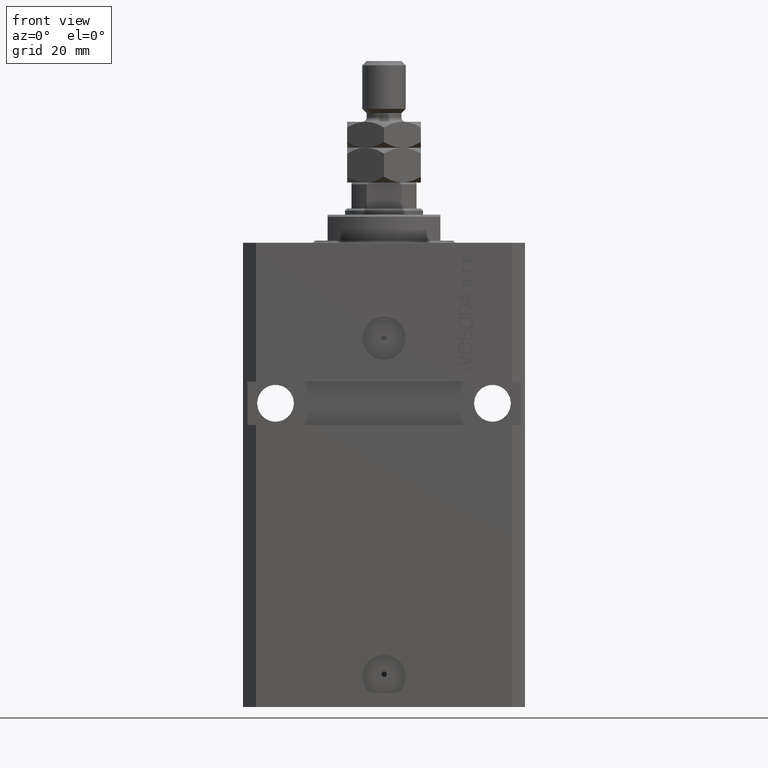
[diagram: clean part render]
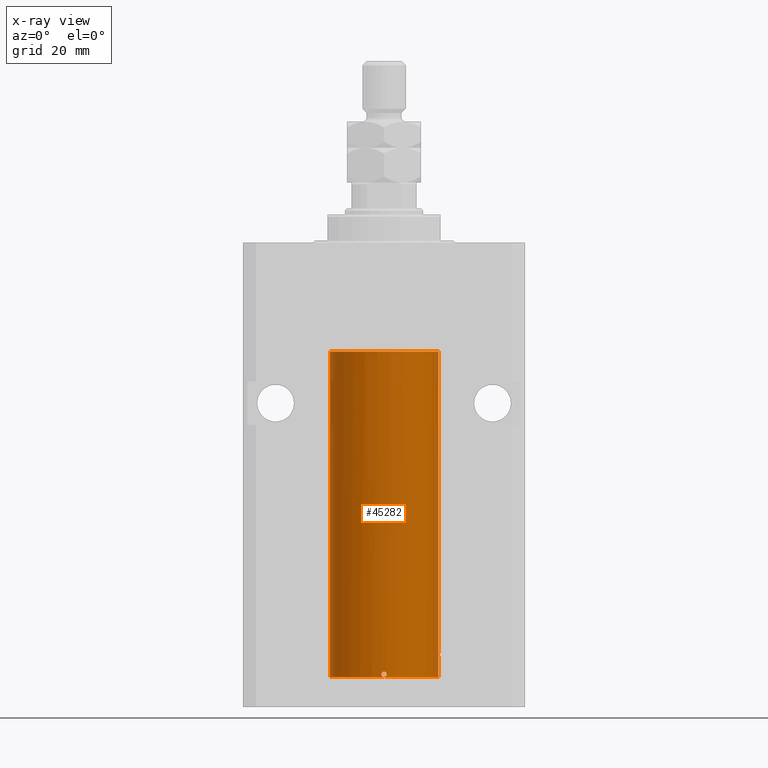
[diagram: x-ray — body ghosted, one internal face saturated and labeled with its STEP entity id]
A machine part, front view, then the same camera in x-ray: the body is ghosted and one INTERNAL B-rep face — a face not visible from any outside direction — is saturated and labeled: STEP entity #45282.
In plain terms, the highlighted cylindrical surface (partial cylindrical patch) has radius 12.5 mm, axis along (0, 0, 1).
Its self-contained STEP definition (entity closure, byte-faithful):
#1190 = B_SPLINE_CURVE_WITH_KNOTS ( 'NONE', 3,
 ( #22603, #26122, #8920, #23298, #12010, #27282 ),
 .UNSPECIFIED., .F., .F.,
 ( 4, 2, 4 ),
 ( 0.002931796015602113319, 0.003420015203430351765, 0.003908234391258589777 ),
 .UNSPECIFIED. ) ;
#1729 = CARTESIAN_POINT ( 'NONE',  ( 0.000000000000000000, 0.000000000000000000, -100.0999999999999943 ) ) ;
#1814 = ORIENTED_EDGE ( 'NONE', *, *, #10299, .F. ) ;
#1823 = DIRECTION ( 'NONE',  ( -0.000000000000000000, -0.000000000000000000, 1.000000000000000000 ) ) ;
#1853 = CARTESIAN_POINT ( 'NONE',  ( 0.5460961315382512060, -12.48810487413754444, -99.16017824283936477 ) ) ;
#2033 = VERTEX_POINT ( 'NONE', #30548 ) ;
#2233 = VECTOR ( 'NONE', #38986, 1000.000000000000000 ) ;
#2475 = CARTESIAN_POINT ( 'NONE',  ( -12.48437204107163190, -0.6248637920779657184, -95.16542285240650756 ) ) ;
#2976 = VERTEX_POINT ( 'NONE', #34123 ) ;
#3479 = CARTESIAN_POINT ( 'NONE',  ( 12.50000000000000000, 0.000000000000000000, -25.10000000000000142 ) ) ;
#4258 = CARTESIAN_POINT ( 'NONE',  ( 12.50000000000000178, -0.1650848372273117926, -95.62500000000005684 ) ) ;
#4292 = VERTEX_POINT ( 'NONE', #6516 ) ;
#4312 = CARTESIAN_POINT ( 'NONE',  ( -12.50000000000000000, 1.530808498934191521E-15, -100.0999999999999943 ) ) ;
#5063 = ORIENTED_EDGE ( 'NONE', *, *, #25977, .T. ) ;
#5368 = FACE_OUTER_BOUND ( 'NONE', #27430, .T. ) ;
#5456 = CARTESIAN_POINT ( 'NONE',  ( 0.5573988467447078543, -12.48809900631781034, -99.80140147935479433 ) ) ;
#5545 = CARTESIAN_POINT ( 'NONE',  ( 12.48436522214885436, -0.6250000000001719735, -95.00000000000000000 ) ) ;
#6147 = CARTESIAN_POINT ( 'NONE',  ( 0.6250000000080510043, -12.48436522214846001, -99.47499999999922693 ) ) ;
#6247 = CARTESIAN_POINT ( 'NONE',  ( -12.48809300548635903, -0.5575284115737645374, -94.67380822970859811 ) ) ;
#6382 = CARTESIAN_POINT ( 'NONE',  ( 0.3844519291904485159, -12.49421963472024188, -99.97447303647052763 ) ) ;
#6477 = CARTESIAN_POINT ( 'NONE',  ( -12.49625500642807729, -0.3269795983093172764, -94.44293326880233508 ) ) ;
#6516 = CARTESIAN_POINT ( 'NONE',  ( -12.50000000000017941, 3.883381774819353300E-13, -95.62500000000359535 ) ) ;
#6986 = CARTESIAN_POINT ( 'NONE',  ( 12.50000000000000000, 0.000000000000000000, -100.0999999999999943 ) ) ;
#7177 = DIRECTION ( 'NONE',  ( 0.000000000000000000, 0.000000000000000000, 1.000000000000000000 ) ) ;
#7604 = VECTOR ( 'NONE', #37969, 1000.000000000000000 ) ;
#7771 = CARTESIAN_POINT ( 'NONE',  ( 12.50000000000000000, 0.000000000000000000, -100.0999999999999943 ) ) ;
#7857 = LINE ( 'NONE', #4312, #9956 ) ;
#8505 = CARTESIAN_POINT ( 'NONE',  ( 12.50000000000000000, 0.000000000000000000, -100.0999999999999943 ) ) ;
#8839 = CARTESIAN_POINT ( 'NONE',  ( 12.50000000000000000, -1.836039810331332019E-15, -95.62500000000000000 ) ) ;
#8920 = CARTESIAN_POINT ( 'NONE',  ( -0.5573321180046024725, -12.48810161786719242, -99.80148238604532196 ) ) ;
#9268 = CARTESIAN_POINT ( 'NONE',  ( -0.6250000000000023315, -12.48436522214886324, -99.47499999999999432 ) ) ;
#9534 = CARTESIAN_POINT ( 'NONE',  ( -12.48435842450558297, -0.6251357828645061065, -94.83560799371400662 ) ) ;
#9738 = ORIENTED_EDGE ( 'NONE', *, *, #27364, .F. ) ;
#9956 = VECTOR ( 'NONE', #21514, 1000.000000000000000 ) ;
#10200 = LINE ( 'NONE', #17037, #7604 ) ;
#10299 = EDGE_CURVE ( 'NONE', #2033, #36725, #25903, .T. ) ;
#10446 = ORIENTED_EDGE ( 'NONE', *, *, #27730, .F. ) ;
#10780 = B_SPLINE_CURVE_WITH_KNOTS ( 'NONE', 3,
 ( #42225, #34734, #38708, #45273, #2475, #9534, #6247, #6477, #16846, #31430 ),
 .UNSPECIFIED., .F., .F.,
 ( 4, 2, 2, 2, 4 ),
 ( 0.001954339881912780900, 0.002442813509249233336, 0.002931287136585685772, 0.003419760763922138208, 0.003908234391258590644 ),
 .UNSPECIFIED. ) ;
#10840 = DIRECTION ( 'NONE',  ( -0.000000000000000000, -0.000000000000000000, 1.000000000000000000 ) ) ;
#11340 = CARTESIAN_POINT ( 'NONE',  ( 12.48810161786718709, -0.5573321180047424717, -95.32648238604538449 ) ) ;
#11503 = VERTEX_POINT ( 'NONE', #8839 ) ;
#11590 = EDGE_CURVE ( 'NONE', #4292, #44579, #10780, .T. ) ;
#12010 = CARTESIAN_POINT ( 'NONE',  ( -0.1650848372272839537, -12.50000000000000178, -100.1000000000000085 ) ) ;
#12015 = CARTESIAN_POINT ( 'NONE',  ( 0.6087772866342631151, -12.48520622767670574, -99.31152541805842304 ) ) ;
#12685 = CARTESIAN_POINT ( 'NONE',  ( 0.000000000000000000, 0.000000000000000000, -25.10000000000000142 ) ) ;
#13384 = DIRECTION ( 'NONE',  ( 1.000000000000000000, 0.000000000000000000, 0.000000000000000000 ) ) ;
#13687 = CARTESIAN_POINT ( 'NONE',  ( 0.3151108292487660445, -12.49625698805480845, -100.0209369568817834 ) ) ;
#13706 = AXIS2_PLACEMENT_3D ( 'NONE', #12685, #41361, #13384 ) ;
#14844 = LINE ( 'NONE', #7771, #33078 ) ;
#15080 = CARTESIAN_POINT ( 'NONE',  ( 12.50000000000000355, -0.1632239044005776296, -94.37499999999975842 ) ) ;
#15320 = CARTESIAN_POINT ( 'NONE',  ( 12.49626862995824261, -0.3264790874448512681, -94.44266345233397431 ) ) ;
#15555 = CARTESIAN_POINT ( 'NONE',  ( 12.48436522214885436, -0.6250000000001719735, -95.00000000000000000 ) ) ;
#15748 = VERTEX_POINT ( 'NONE', #31685 ) ;
#15784 = CARTESIAN_POINT ( 'NONE',  ( -0.6250000000000024425, -12.48436522214886324, -99.31002761350272579 ) ) ;
#16013 = CARTESIAN_POINT ( 'NONE',  ( 0.6250000000080510043, -12.48436522214846001, -99.47499999999922693 ) ) ;
#16846 = CARTESIAN_POINT ( 'NONE',  ( -12.50000000000000178, -0.1651708725693010194, -94.37500000000000000 ) ) ;
#17037 = CARTESIAN_POINT ( 'NONE',  ( -12.50000000000000000, 1.530808498934191521E-15, -100.0999999999999943 ) ) ;
#17078 = CARTESIAN_POINT ( 'NONE',  ( 12.48436522214885080, -0.6250000000001718625, -95.16484350486187793 ) ) ;
#19716 = CIRCLE ( 'NONE', #13706, 12.50000000000000000 ) ;
#19738 = CYLINDRICAL_SURFACE ( 'NONE', #44415, 12.50000000000000000 ) ;
#20746 = CARTESIAN_POINT ( 'NONE',  ( 0.08262306818364179017, -12.50000000000000000, -100.1000000000000085 ) ) ;
#21514 = DIRECTION ( 'NONE',  ( -0.000000000000000000, -0.000000000000000000, 1.000000000000000000 ) ) ;
#21924 = CARTESIAN_POINT ( 'NONE',  ( 12.48436522214885436, -0.6250000000001719735, -95.00000000000000000 ) ) ;
#22603 = CARTESIAN_POINT ( 'NONE',  ( -0.6250000000000023315, -12.48436522214886324, -99.47499999999999432 ) ) ;
#22841 = CARTESIAN_POINT ( 'NONE',  ( 0.1629224624750973127, -12.50000332393459068, -98.84993352130273081 ) ) ;
#23298 = CARTESIAN_POINT ( 'NONE',  ( -0.3268155536464902311, -12.49625914831439921, -100.0321368162776992 ) ) ;
#23630 = DIRECTION ( 'NONE',  ( 1.000000000000000000, 0.000000000000000000, 0.000000000000000000 ) ) ;
#23651 = CARTESIAN_POINT ( 'NONE',  ( 12.50000000000017941, 3.868073689162038701E-13, -94.37499999999640465 ) ) ;
#23670 = VERTEX_POINT ( 'NONE', #9268 ) ;
#23835 = VERTEX_POINT ( 'NONE', #33483 ) ;
#24041 = CARTESIAN_POINT ( 'NONE',  ( 1.470104640658485388E-15, -12.50000000000000000, -100.0999999999999943 ) ) ;
#24135 = ORIENTED_EDGE ( 'NONE', *, *, #44624, .T. ) ;
#24228 = EDGE_CURVE ( 'NONE', #2976, #23670, #42009, .T. ) ;
#24299 = ORIENTED_EDGE ( 'NONE', *, *, #24228, .T. ) ;
#25866 = DIRECTION ( 'NONE',  ( 1.000000000000000000, 0.000000000000000000, 0.000000000000000000 ) ) ;
#25903 = CIRCLE ( 'NONE', #34912, 12.50000000000000000 ) ;
#25977 = EDGE_CURVE ( 'NONE', #37363, #11503, #41830, .T. ) ;
#26122 = CARTESIAN_POINT ( 'NONE',  ( -0.6250000000000023315, -12.48436522214885969, -99.63984350486184383 ) ) ;
#26523 = EDGE_CURVE ( 'NONE', #35069, #32399, #36164, .T. ) ;
#27282 = CARTESIAN_POINT ( 'NONE',  ( 1.470104640658485388E-15, -12.50000000000000000, -100.0999999999999943 ) ) ;
#27364 = EDGE_CURVE ( 'NONE', #15748, #2033, #33796, .T. ) ;
#27430 = EDGE_LOOP ( 'NONE', ( #9738, #24135, #30716, #33398, #36990, #28407, #34490, #5063, #10446, #1814, #36620, #24299, #31260 ) ) ;
#27569 = CARTESIAN_POINT ( 'NONE',  ( 0.6250000000003165246, -12.48436522214884725, -99.63812747540310966 ) ) ;
#27730 = EDGE_CURVE ( 'NONE', #36725, #11503, #14844, .T. ) ;
#28407 = ORIENTED_EDGE ( 'NONE', *, *, #26523, .F. ) ;
#30364 = CARTESIAN_POINT ( 'NONE',  ( -0.5571821530518559218, -12.48810851326189386, -99.14827784464193883 ) ) ;
#30548 = CARTESIAN_POINT ( 'NONE',  ( 1.470104640658485388E-15, -12.50000000000000000, -100.0999999999999943 ) ) ;
#30584 = CARTESIAN_POINT ( 'NONE',  ( 0.3251408448057627743, -12.49631649875955475, -98.91629557722389166 ) ) ;
#30617 = EDGE_CURVE ( 'NONE', #44579, #23835, #10200, .T. ) ;
#30716 = ORIENTED_EDGE ( 'NONE', *, *, #11590, .T. ) ;
#30859 = EDGE_CURVE ( 'NONE', #2033, #2976, #32063, .T. ) ;
#30872 = CARTESIAN_POINT ( 'NONE',  ( 0.1636982395582736172, -12.49915742890632053, -100.0837239784703172 ) ) ;
#31260 = ORIENTED_EDGE ( 'NONE', *, *, #39387, .T. ) ;
#31429 = CARTESIAN_POINT ( 'NONE',  ( 12.50000000000000000, -1.836039810331332019E-15, -95.62500000000000000 ) ) ;
#31430 = CARTESIAN_POINT ( 'NONE',  ( -12.50000000000000000, -1.522152011595579853E-14, -94.37500000000000000 ) ) ;
#31685 = CARTESIAN_POINT ( 'NONE',  ( -12.50000000000000000, 1.530808498934191521E-15, -100.0999999999999943 ) ) ;
#32063 = B_SPLINE_CURVE_WITH_KNOTS ( 'NONE', 3,
 ( #24041, #20746, #30872, #13687, #6382, #5456, #27569, #6147 ),
 .UNSPECIFIED., .F., .F.,
 ( 4, 2, 2, 4 ),
 ( 0.000000000000000000, 0.0002443481056286064194, 0.0004886962112572128389, 0.0009773924225144256777 ),
 .UNSPECIFIED. ) ;
#32399 = VERTEX_POINT ( 'NONE', #3479 ) ;
#32604 = CARTESIAN_POINT ( 'NONE',  ( 0.000000000000000000, 0.000000000000000000, -100.0999999999999943 ) ) ;
#33039 = EDGE_CURVE ( 'NONE', #23835, #32399, #19716, .T. ) ;
#33078 = VECTOR ( 'NONE', #10840, 1000.000000000000000 ) ;
#33398 = ORIENTED_EDGE ( 'NONE', *, *, #30617, .T. ) ;
#33483 = CARTESIAN_POINT ( 'NONE',  ( -12.50000000000000000, 1.530808498934191521E-15, -25.10000000000000142 ) ) ;
#33796 = CIRCLE ( 'NONE', #43516, 12.50000000000000000 ) ;
#33888 = CARTESIAN_POINT ( 'NONE',  ( -0.3266214369556179609, -12.49626442692393979, -98.91775879961872420 ) ) ;
#34089 = CARTESIAN_POINT ( 'NONE',  ( 0.000000000000000000, 0.000000000000000000, -100.0999999999999943 ) ) ;
#34123 = CARTESIAN_POINT ( 'NONE',  ( 0.6250000000080510043, -12.48436522214846001, -99.47499999999922693 ) ) ;
#34490 = ORIENTED_EDGE ( 'NONE', *, *, #40569, .T. ) ;
#34734 = CARTESIAN_POINT ( 'NONE',  ( -12.50000000000000178, -0.1631389274720986549, -95.62500000000015632 ) ) ;
#34912 = AXIS2_PLACEMENT_3D ( 'NONE', #1729, #44764, #23630 ) ;
#35069 = VERTEX_POINT ( 'NONE', #23651 ) ;
#36164 = LINE ( 'NONE', #6986, #2233 ) ;
#36482 = CARTESIAN_POINT ( 'NONE',  ( 12.48811067843434230, -0.5571444604332078665, -94.67319321899354634 ) ) ;
#36512 = CARTESIAN_POINT ( 'NONE',  ( 12.49625914831439744, -0.3268155536465563449, -95.55713681627776168 ) ) ;
#36592 = DIRECTION ( 'NONE',  ( 1.000000000000000000, 0.000000000000000000, 0.000000000000000000 ) ) ;
#36620 = ORIENTED_EDGE ( 'NONE', *, *, #30859, .T. ) ;
#36716 = CARTESIAN_POINT ( 'NONE',  ( 12.50000000000017941, 3.868073689162038701E-13, -94.37499999999640465 ) ) ;
#36725 = VERTEX_POINT ( 'NONE', #8505 ) ;
#36990 = ORIENTED_EDGE ( 'NONE', *, *, #33039, .T. ) ;
#37363 = VERTEX_POINT ( 'NONE', #5545 ) ;
#37400 = CARTESIAN_POINT ( 'NONE',  ( 0.5002336959535143013, -12.49012317397092708, -99.09133113277154337 ) ) ;
#37630 = CARTESIAN_POINT ( 'NONE',  ( 0.6249999999998494538, -12.48436522214887034, -99.39345217010023248 ) ) ;
#37969 = DIRECTION ( 'NONE',  ( -0.000000000000000000, -0.000000000000000000, 1.000000000000000000 ) ) ;
#38708 = CARTESIAN_POINT ( 'NONE',  ( -12.49627279065598628, -0.3263143231498968899, -95.55740725890369447 ) ) ;
#38986 = DIRECTION ( 'NONE',  ( -0.000000000000000000, -0.000000000000000000, 1.000000000000000000 ) ) ;
#39387 = EDGE_CURVE ( 'NONE', #23670, #2033, #1190, .T. ) ;
#39879 = B_SPLINE_CURVE_WITH_KNOTS ( 'NONE', 3,
 ( #36716, #15080, #15320, #36482, #43736, #15555 ),
 .UNSPECIFIED., .F., .F.,
 ( 4, 2, 4 ),
 ( 0.001954339881912461711, 0.002443067948757210103, 0.002931796015601958062 ),
 .UNSPECIFIED. ) ;
#40569 = EDGE_CURVE ( 'NONE', #35069, #37363, #39879, .T. ) ;
#41361 = DIRECTION ( 'NONE',  ( 0.000000000000000000, 0.000000000000000000, 1.000000000000000000 ) ) ;
#41830 = B_SPLINE_CURVE_WITH_KNOTS ( 'NONE', 3,
 ( #21924, #17078, #11340, #36512, #4258, #31429 ),
 .UNSPECIFIED., .F., .F.,
 ( 4, 2, 4 ),
 ( 0.002931796015601958062, 0.003420015203430274570, 0.003908234391258590644 ),
 .UNSPECIFIED. ) ;
#42009 = B_SPLINE_CURVE_WITH_KNOTS ( 'NONE', 3,
 ( #16013, #37630, #12015, #1853, #37400, #30584, #22841, #44660, #33888, #30364, #15784, #44884 ),
 .UNSPECIFIED., .F., .F.,
 ( 4, 2, 2, 2, 2, 4 ),
 ( 0.0009773924225144256777, 0.001221692871650375710, 0.001465993320786325741, 0.001954594219058255079, 0.002443195117330184199, 0.002931796015602113753 ),
 .UNSPECIFIED. ) ;
#42225 = CARTESIAN_POINT ( 'NONE',  ( -12.50000000000017941, 3.883381774819353300E-13, -95.62500000000359535 ) ) ;
#43353 = CARTESIAN_POINT ( 'NONE',  ( -12.50000000000000000, -1.522152011595579853E-14, -94.37500000000000000 ) ) ;
#43516 = AXIS2_PLACEMENT_3D ( 'NONE', #32604, #7177, #36592 ) ;
#43736 = CARTESIAN_POINT ( 'NONE',  ( 12.48436522214885613, -0.6250000000001719735, -94.83498467599889636 ) ) ;
#44415 = AXIS2_PLACEMENT_3D ( 'NONE', #34089, #1823, #25866 ) ;
#44579 = VERTEX_POINT ( 'NONE', #43353 ) ;
#44624 = EDGE_CURVE ( 'NONE', #15748, #4292, #7857, .T. ) ;
#44660 = CARTESIAN_POINT ( 'NONE',  ( -0.1634321124498648858, -12.49999667087054966, -98.85006658259449352 ) ) ;
#44764 = DIRECTION ( 'NONE',  ( 0.000000000000000000, 0.000000000000000000, 1.000000000000000000 ) ) ;
#44884 = CARTESIAN_POINT ( 'NONE',  ( -0.6250000000000023315, -12.48436522214886324, -99.47499999999999432 ) ) ;
#45273 = CARTESIAN_POINT ( 'NONE',  ( -12.48811925907523879, -0.5569488909189640458, -95.32709604503176593 ) ) ;
#45282 = ADVANCED_FACE ( 'NONE', ( #5368 ), #19738, .F. ) ;